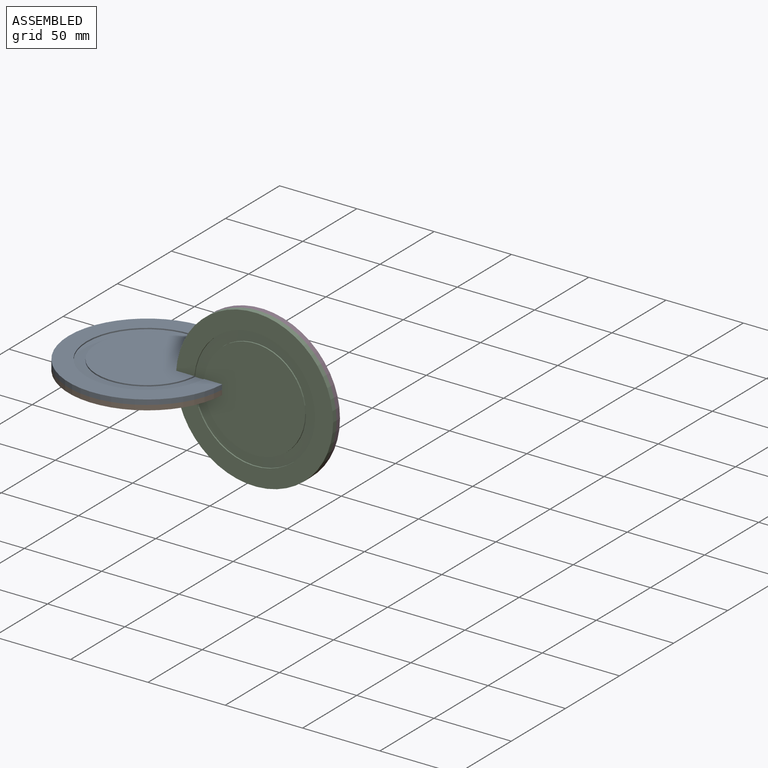
[diagram: assembled view]
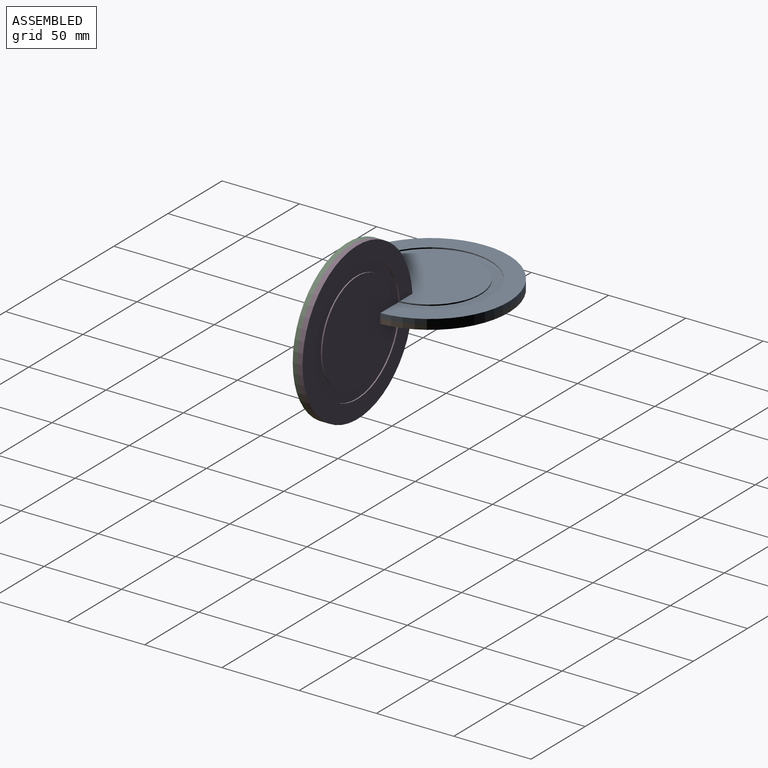
[diagram: assembled view, second angle]
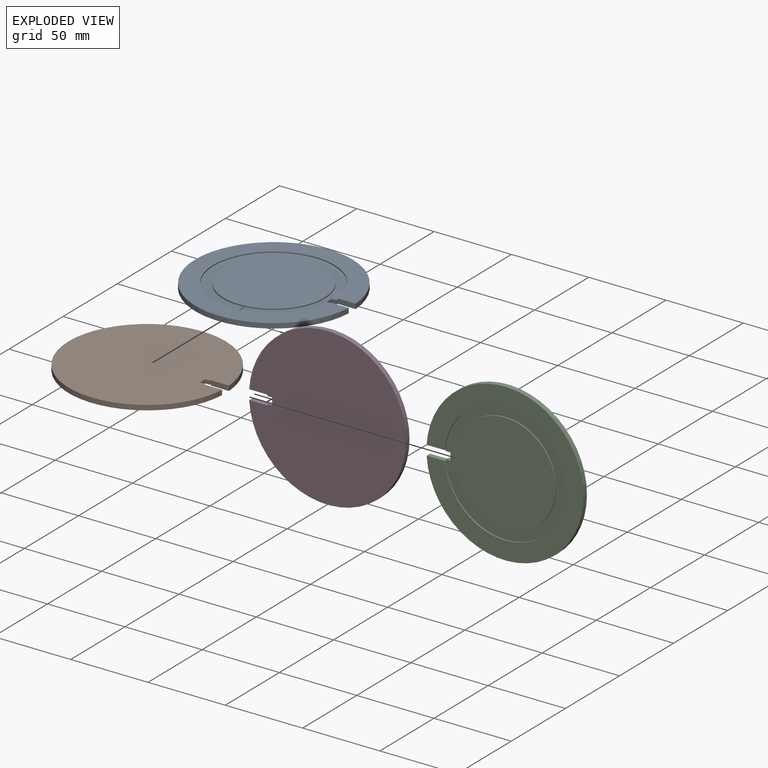
[diagram: exploded view]
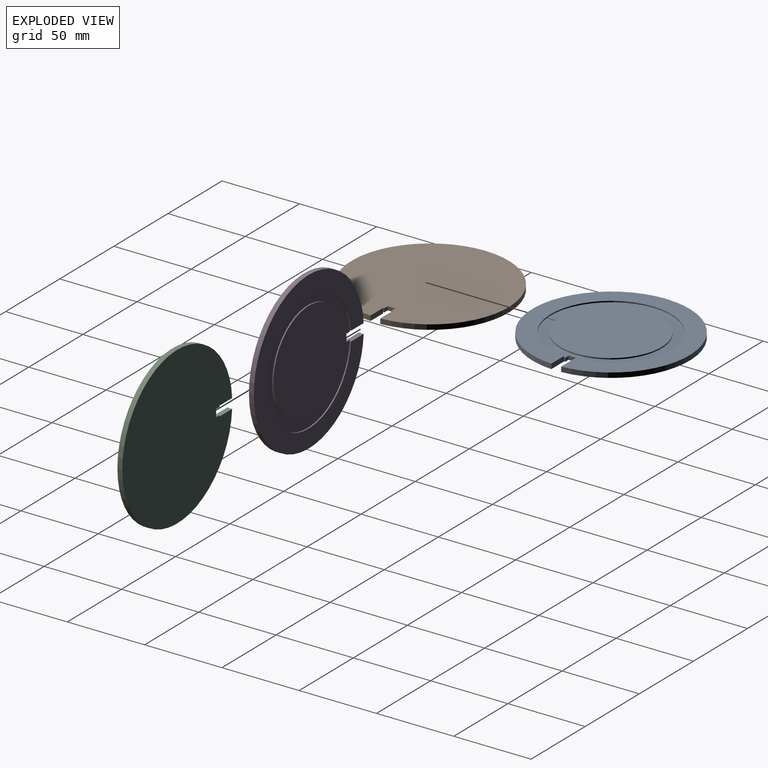
[diagram: exploded view, second angle]
ASSEMBLY  parts=4 mates=3
PART A: 14 faces, bbox 101.5x101.6x3.2 mm
  f0: plane 4.76x2.38mm, normal (1,0,0), area 11.3mm2, adj f5,f8,f10,f13
  f1: plane 11.73x3.18mm, normal (0,-1,0), area 37.3mm2, adj f2,f4,f5,f6,f11
  f2: cylinder r=50.8mm len=101.6mm, axis (0,0,-1), area 993.2mm2, adj f1,f3,f4,f5
  f3: plane 11.73x3.18mm, normal (0,1,0), area 37.3mm2, adj f2,f4,f5,f6,f12
  f4: plane 101.6x101.5mm, normal (0,0,1), area 3231mm2, adj f1,f2,f3,f6
  f5: plane 101.6x101.5mm, normal (0,0,-1), area 8017.6mm2, adj f0,f1,f2,f3,f10,f11,f12,f13
  f6: cylinder r=39.1mm len=78.19mm, axis (0,0,1), area 189.9mm2, adj f1,f3,f4,f8
  f7: cylinder r=32.75mm len=65.49mm, axis (0,0,1), area 163.3mm2, adj f8,f9
  f8: plane 78.19x78.12mm, normal (0,0,1), area 1417.8mm2, adj f0,f6,f7,f10,f11,f12,f13
  f9: plane 65.49x65.49mm, normal (0,0,1), area 3368.7mm2, adj f7
  f10: plane 3.18x2.38mm, normal (0,-1,0), area 7.6mm2, adj f0,f5,f8,f11
  f11: cylinder r=39.1mm len=2.38mm, axis (0,0,1), area 1.9mm2, adj f1,f5,f8,f10
  f12: cylinder r=39.1mm len=2.38mm, axis (0,0,1), area 1.9mm2, adj f3,f5,f8,f13
  f13: plane 3.18x2.38mm, normal (0,1,0), area 7.6mm2, adj f0,f5,f8,f12
PART B: same geometry as A
PART C: same geometry as A
PART D: same geometry as A
PLACE A rot(axis=(0.4,-0.9,-0.18),0deg) t=(-12.32,-18.91,-53.82)mm
PLACE B rot(axis=(-1,0,0),180deg) t=(-12.32,-18.91,-53.82)mm
PLACE C rot(axis=(0,0.71,-0.71),180deg) t=(59.37,-18.91,-53.82)mm
PLACE D rot(axis=(0,0.71,0.71),180deg) t=(59.37,-18.91,-53.82)mm
MATE fastened A.f0 <-> D.f0  axis (1,0,0) through (23.52,-18.91,-53.82)mm
MATE fastened C.f2 <-> D.f2  axis (0,1,0) through (59.37,-18.91,-53.82)mm
MATE fastened B.f2 <-> A.f2  axis (0,0,1) through (-12.32,-18.91,-53.82)mm
